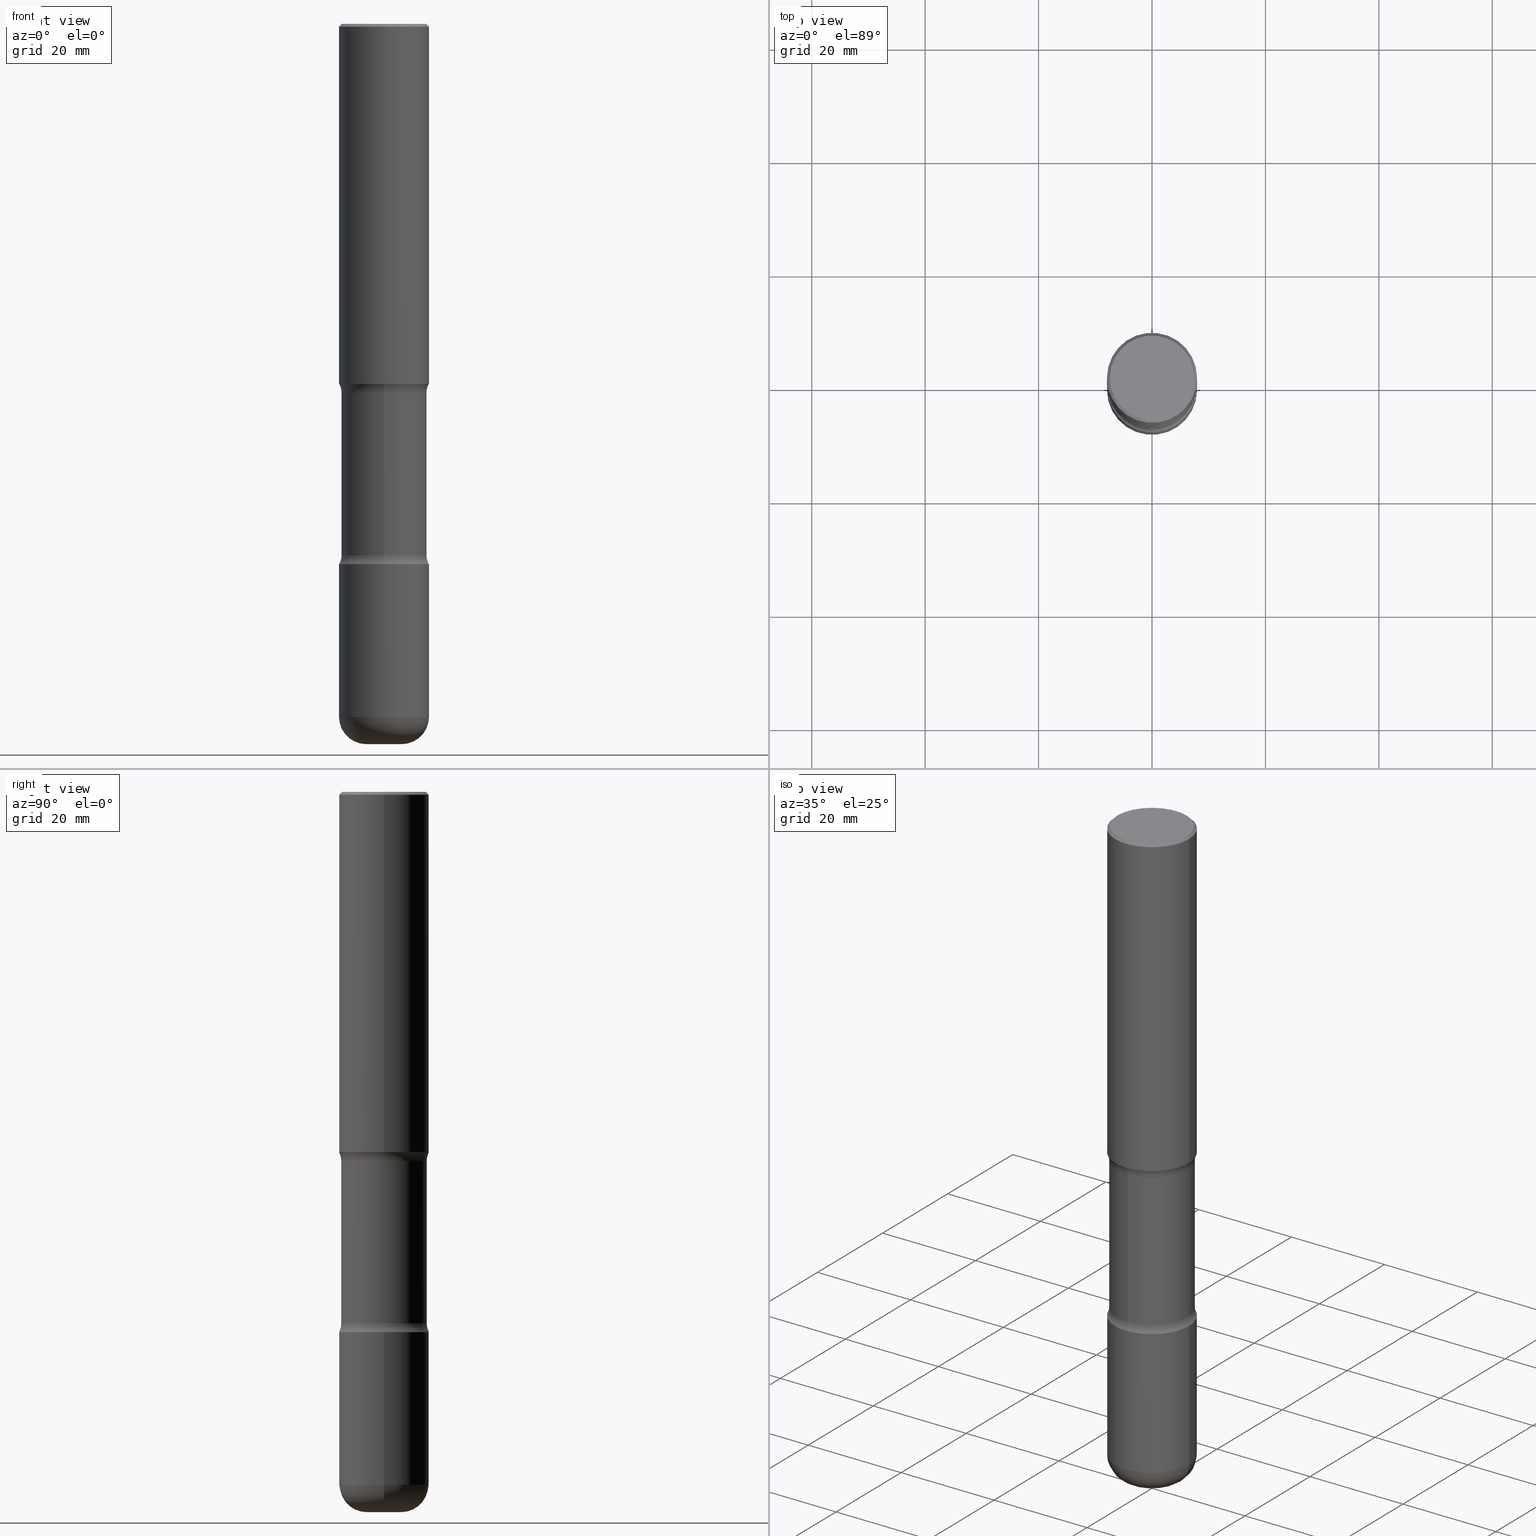
[diagram: canonical four-view strip — front | top / right | iso, engineering-drawing reading convention]
A machine part, canonical four-view strip (front | top / right | iso — engineering-drawing reading convention). The complete STEP part file that produces these views, byte-faithful:
ISO-10303-21;
HEADER;
FILE_DESCRIPTION (( 'STEP AP203' ),
    '1' );
FILE_NAME ('37920.STEP',
    '2024-03-02T01:25:54',
    ( '' ),
    ( '' ),
    'SwSTEP 2.0',
    'SolidWorks 2023',
    '' );
FILE_SCHEMA (( 'CONFIG_CONTROL_DESIGN' ));
ENDSEC;

DATA;
#1 = ORIENTED_EDGE ( 'NONE', *, *, #202, .F. ) ;
#2 = EDGE_CURVE ( 'NONE', #33, #457, #225, .T. ) ;
#3 = AXIS2_PLACEMENT_3D ( 'NONE', #93, #179, #266 ) ;
#4 = LOCAL_TIME ( 20, 25, 54.00000000000000000, #524 ) ;
#5 = DATE_AND_TIME ( #126, #339 ) ;
#6 = DIRECTION ( 'NONE',  ( 1.000000000000000000, -6.982962677686265922E-15, 4.876176775795935793E-29 ) ) ;
#7 = ADVANCED_FACE ( 'NONE', ( #261 ), #96, .T. ) ;
#8 = CARTESIAN_POINT ( 'NONE',  ( 0.3125000000000002220, -1.091087918388482329E-14, -2.499999999999999556 ) ) ;
#9 = DIRECTION ( 'NONE',  ( -1.000000000000000000, 6.982962677686265922E-15, -4.876176775795935793E-29 ) ) ;
#10 = TOROIDAL_SURFACE ( 'NONE', #312, 0.4218750000000000555, 0.1250000000000000000 ) ;
#11 = AXIS2_PLACEMENT_3D ( 'NONE', #13, #149, #18 ) ;
#12 = CARTESIAN_POINT ( 'NONE',  ( 2.073067044938200360E-15, 0.2968749999999871214, -3.689484635215509289 ) ) ;
#13 = CARTESIAN_POINT ( 'NONE',  ( 0.000000000000000000, 0.000000000000000000, 0.000000000000000000 ) ) ;
#14 = CARTESIAN_POINT ( 'NONE',  ( 2.073067044938233492E-15, 0.2968749999999827360, -5.000000000000000888 ) ) ;
#15 = PLANE ( 'NONE',  #252 ) ;
#16 = DIRECTION ( 'NONE',  ( 1.000000000000000000, -6.982962677686264344E-15, 0.000000000000000000 ) ) ;
#17 = DATE_AND_TIME ( #271, #258 ) ;
#18 = DIRECTION ( 'NONE',  ( 1.000000000000000000, 0.000000000000000000, 0.000000000000000000 ) ) ;
#19 = FACE_OUTER_BOUND ( 'NONE', #157, .T. ) ;
#20 = PRODUCT_DEFINITION ( 'UNKNOWN', '', #493, #284 ) ;
#21 = APPLICATION_PROTOCOL_DEFINITION ( 'international standard', 'config_control_design', 1994, #100 ) ;
#22 = CLOSED_SHELL ( 'NONE', ( #181, #250, #224, #337, #357, #355, #32, #7 ) ) ;
#23 = DIRECTION ( 'NONE',  ( -2.445468806185136597E-29, 3.491481338843145583E-15, 1.000000000000000000 ) ) ;
#24 = AXIS2_PLACEMENT_3D ( 'NONE', #368, #53, #183 ) ;
#25 =( GEOMETRIC_REPRESENTATION_CONTEXT ( 3 ) GLOBAL_UNCERTAINTY_ASSIGNED_CONTEXT ( ( #483 ) ) GLOBAL_UNIT_ASSIGNED_CONTEXT ( ( #447, #294, #556 ) ) REPRESENTATION_CONTEXT ( 'NONE', 'WORKASPACE' ) );
#26 = DIRECTION ( 'NONE',  ( 2.521457479434076939E-29, -3.382661233743975076E-15, -1.000000000000000000 ) ) ;
#27 = ORIENTED_EDGE ( 'NONE', *, *, #213, .F. ) ;
#28 = ORIENTED_EDGE ( 'NONE', *, *, #488, .F. ) ;
#29 = DIRECTION ( 'NONE',  ( 1.000000000000000000, -6.982962677686262766E-15, 0.000000000000000000 ) ) ;
#30 = EDGE_LOOP ( 'NONE', ( #40, #415, #282, #253 ) ) ;
#31 = CARTESIAN_POINT ( 'NONE',  ( 4.890937612370289799E-31, -6.982962677686315028E-17, -0.02000000000000006981 ) ) ;
#32 = ADVANCED_FACE ( 'NONE', ( #47 ), #436, .F. ) ;
#33 = VERTEX_POINT ( 'NONE', #477 ) ;
#34 = FACE_OUTER_BOUND ( 'NONE', #387, .T. ) ;
#35 = CARTESIAN_POINT ( 'NONE',  ( 6.171273093058203090E-29, -9.069431456984199816E-15, -2.560515364784490711 ) ) ;
#36 = AXIS2_PLACEMENT_3D ( 'NONE', #272, #315, #94 ) ;
#37 = ORGANIZATION ( 'UNSPECIFIED', 'UNSPECIFIED', '' ) ;
#38 = ORIENTED_EDGE ( 'NONE', *, *, #536, .T. ) ;
#39 = EDGE_CURVE ( 'NONE', #102, #417, #456, .T. ) ;
#40 = ORIENTED_EDGE ( 'NONE', *, *, #313, .F. ) ;
#41 = DIRECTION ( 'NONE',  ( 2.521457479434076939E-29, -3.382661233743975076E-15, -1.000000000000000000 ) ) ;
#42 = CIRCLE ( 'NONE', #443, 0.3125000000000001665 ) ;
#43 = AXIS2_PLACEMENT_3D ( 'NONE', #491, #485, #57 ) ;
#44 = CARTESIAN_POINT ( 'NONE',  ( -2.090307983695953569E-15, -0.2968750000000091038, -2.560515364784489822 ) ) ;
#45 = DIRECTION ( 'NONE',  ( 2.521457479434076939E-29, -3.382661233743975076E-15, -1.000000000000000000 ) ) ;
#46 = EDGE_CURVE ( 'NONE', #215, #33, #297, .T. ) ;
#47 = FACE_OUTER_BOUND ( 'NONE', #169, .T. ) ;
#48 = EDGE_CURVE ( 'NONE', #170, #451, #51, .T. ) ;
#49 = CARTESIAN_POINT ( 'NONE',  ( 6.171273093058203090E-29, -9.069431456984199816E-15, -2.560515364784490711 ) ) ;
#50 = APPROVAL ( #279, 'UNSPECIFIED' ) ;
#51 = CIRCLE ( 'NONE', #554, 0.2924999999999998157 ) ;
#52 = FACE_OUTER_BOUND ( 'NONE', #87, .T. ) ;
#53 = DIRECTION ( 'NONE',  ( 2.521457479434076939E-29, -3.382661233743974681E-15, -1.000000000000000000 ) ) ;
#54 =( LENGTH_UNIT ( ) NAMED_UNIT ( * ) SI_UNIT ( $, .METRE. ) );
#55 = DIRECTION ( 'NONE',  ( 0.7071067811865472397, -7.319954787623254468E-15, -0.7071067811865477948 ) ) ;
#56 = FACE_OUTER_BOUND ( 'NONE', #467, .T. ) ;
#57 = DIRECTION ( 'NONE',  ( -1.000000000000000000, 6.982962677686265922E-15, -4.876176775795935793E-29 ) ) ;
#58 = PLANE ( 'NONE',  #400 ) ;
#59 = EDGE_LOOP ( 'NONE', ( #74, #343, #275, #65 ) ) ;
#60 = CIRCLE ( 'NONE', #475, 0.2968750000000000000 ) ;
#61 = VECTOR ( 'NONE', #289, 39.37007874015748143 ) ;
#62 = DIRECTION ( 'NONE',  ( 1.000000000000000000, -6.982962677686266711E-15, 4.876176775795935232E-29 ) ) ;
#63 = ORIENTED_EDGE ( 'NONE', *, *, #262, .F. ) ;
#64 = EDGE_CURVE ( 'NONE', #102, #238, #106, .T. ) ;
#65 = ORIENTED_EDGE ( 'NONE', *, *, #413, .F. ) ;
#66 = DIRECTION ( 'NONE',  ( 6.982962677686265922E-15, 1.000000000000000000, -3.496765431890253764E-15 ) ) ;
#67 = CARTESIAN_POINT ( 'NONE',  ( -2.036710343088299976E-15, -0.2968750000000173195, -4.999999999999999112 ) ) ;
#68 = ORIENTED_EDGE ( 'NONE', *, *, #91, .F. ) ;
#69 = AXIS2_PLACEMENT_3D ( 'NONE', #198, #329, #377 ) ;
#70 = LOCAL_TIME ( 20, 25, 54.00000000000000000, #380 ) ;
#71 = ADVANCED_FACE ( 'NONE', ( #332 ), #159, .T. ) ;
#72 = ORIENTED_EDGE ( 'NONE', *, *, #501, .F. ) ;
#73 = DIRECTION ( 'NONE',  ( 1.000000000000000000, -6.982962677686266711E-15, 4.876067333457692840E-29 ) ) ;
#74 = ORIENTED_EDGE ( 'NONE', *, *, #91, .T. ) ;
#75 = LINE ( 'NONE', #559, #525 ) ;
#76 = CYLINDRICAL_SURFACE ( 'NONE', #178, 0.2968750000000000000 ) ;
#77 = DIRECTION ( 'NONE',  ( 1.000000000000000000, -6.860497997771530774E-15, 4.842131541558068249E-29 ) ) ;
#78 = ORIENTED_EDGE ( 'NONE', *, *, #46, .T. ) ;
#79 = AXIS2_PLACEMENT_3D ( 'NONE', #540, #23, #29 ) ;
#80 = MANIFOLD_SOLID_BREP ( 'Body-Move/Copy2[1]', #292 ) ;
#81 = EDGE_LOOP ( 'NONE', ( #132, #401, #228, #243 ) ) ;
#82 = CYLINDRICAL_SURFACE ( 'NONE', #428, 0.3125000000000001665 ) ;
#83 = CC_DESIGN_DATE_AND_TIME_ASSIGNMENT ( #5, #486, ( #20 ) ) ;
#84 = CC_DESIGN_PERSON_AND_ORGANIZATION_ASSIGNMENT ( #288, #438, ( #493 ) ) ;
#85 = DIRECTION ( 'NONE',  ( 1.000000000000000000, -6.982962677686265133E-15, 0.000000000000000000 ) ) ;
#86 = DIRECTION ( 'NONE',  ( 2.521457479434076939E-29, -3.382661233743975076E-15, -1.000000000000000000 ) ) ;
#87 = EDGE_LOOP ( 'NONE', ( #195, #133, #520, #28 ) ) ;
#88 = TOROIDAL_SURFACE ( 'NONE', #187, 0.4218750000000001110, 0.1250000000000001388 ) ;
#89 = MANIFOLD_SOLID_BREP ( 'Body-Move/Copy2[2]', #160 ) ;
#90 = CC_DESIGN_APPROVAL ( #50, ( #493 ) ) ;
#91 = EDGE_CURVE ( 'NONE', #238, #102, #144, .T. ) ;
#92 = EDGE_CURVE ( 'NONE', #417, #487, #359, .T. ) ;
#93 = CARTESIAN_POINT ( 'NONE',  ( 6.018686173901665994E-29, -8.864728478481826400E-15, -2.499999999999999556 ) ) ;
#94 = DIRECTION ( 'NONE',  ( 1.000000000000000000, -6.982962677686266711E-15, 0.000000000000000000 ) ) ;
#95 = CARTESIAN_POINT ( 'NONE',  ( 2.182175836777019878E-15, 0.3124999999999913958, -2.500000000000000444 ) ) ;
#96 = CYLINDRICAL_SURFACE ( 'NONE', #152, 0.2968750000000000000 ) ;
#97 = CALENDAR_DATE ( 2024, 1, 3 ) ;
#98 = FACE_OUTER_BOUND ( 'NONE', #399, .T. ) ;
#99 = VERTEX_POINT ( 'NONE', #354 ) ;
#100 = APPLICATION_CONTEXT ( 'configuration controlled 3d designs of mechanical parts and assemblies' ) ;
#101 = PRODUCT_DEFINITION_SHAPE ( 'NONE', 'NONE',  #20 ) ;
#102 = VERTEX_POINT ( 'NONE', #517 ) ;
#103 = CIRCLE ( 'NONE', #326, 0.2924999999999998157 ) ;
#104 = DIRECTION ( 'NONE',  ( -2.445468806185136597E-29, 3.491481338843145583E-15, 1.000000000000000000 ) ) ;
#105 = PRODUCT_RELATED_PRODUCT_CATEGORY ( 'detail', '', ( #479 ) ) ;
#106 = CIRCLE ( 'NONE', #455, 0.3125000000000002220 ) ;
#107 = AXIS2_PLACEMENT_3D ( 'NONE', #191, #389, #85 ) ;
#108 = EDGE_CURVE ( 'NONE', #345, #99, #75, .T. ) ;
#109 = AXIS2_PLACEMENT_3D ( 'NONE', #460, #542, #379 ) ;
#110 = CARTESIAN_POINT ( 'NONE',  ( -1.043851414335219820E-46, 1.490343170380447200E-32, 4.268512490100411279E-18 ) ) ;
#111 = LINE ( 'NONE', #363, #544 ) ;
#112 = DIRECTION ( 'NONE',  ( 2.521457479434076939E-29, -3.382661233743974681E-15, -1.000000000000000000 ) ) ;
#113 = ORIENTED_EDGE ( 'NONE', *, *, #508, .T. ) ;
#114 = LINE ( 'NONE', #125, #61 ) ;
#115 = DIRECTION ( 'NONE',  ( -1.000000000000000000, 6.982962677686265922E-15, -4.876176775795935793E-29 ) ) ;
#116 = ADVANCED_FACE ( 'NONE', ( #52 ), #141, .T. ) ;
#117 = APPROVAL_ROLE ( '' ) ;
#118 = VERTEX_POINT ( 'NONE', #476 ) ;
#119 = VECTOR ( 'NONE', #112, 39.37007874015748143 ) ;
#120 = APPROVAL_PERSON_ORGANIZATION ( #265, #50, #147 ) ;
#121 = ORIENTED_EDGE ( 'NONE', *, *, #174, .F. ) ;
#122 = DIRECTION ( 'NONE',  ( -2.445468806185136597E-29, 3.491481338843145583E-15, 1.000000000000000000 ) ) ;
#123 = PERSON_AND_ORGANIZATION ( #316, #37 ) ;
#124 = EDGE_LOOP ( 'NONE', ( #472, #1, #367, #249 ) ) ;
#125 = CARTESIAN_POINT ( 'NONE',  ( 0.3125000000000000000, -2.182175836776958347E-15, 1.523805242436230075E-29 ) ) ;
#126 = CALENDAR_DATE ( 2024, 1, 3 ) ;
#127 = ORIENTED_EDGE ( 'NONE', *, *, #376, .T. ) ;
#128 = ORIENTED_EDGE ( 'NONE', *, *, #543, .T. ) ;
#129 = CC_DESIGN_PERSON_AND_ORGANIZATION_ASSIGNMENT ( #286, #416, ( #479 ) ) ;
#130 = CIRCLE ( 'NONE', #69, 0.3125000000000001665 ) ;
#131 = AXIS2_PLACEMENT_3D ( 'NONE', #153, #322, #155 ) ;
#132 = ORIENTED_EDGE ( 'NONE', *, *, #108, .F. ) ;
#133 = ORIENTED_EDGE ( 'NONE', *, *, #108, .T. ) ;
#134 = DIRECTION ( 'NONE',  ( 1.000000000000000000, -6.982962677686266711E-15, 0.000000000000000000 ) ) ;
#135 = DIRECTION ( 'NONE',  ( 6.982962677686266711E-15, 1.000000000000000000, -3.680805717779217644E-15 ) ) ;
#136 = DIRECTION ( 'NONE',  ( 2.521457479434076939E-29, -3.382661233743975076E-15, -1.000000000000000000 ) ) ;
#137 = EDGE_CURVE ( 'NONE', #99, #165, #346, .T. ) ;
#138 = ADVANCED_FACE ( 'NONE', ( #98 ), #221, .F. ) ;
#139 = AXIS2_PLACEMENT_3D ( 'NONE', #515, #104, #185 ) ;
#140 = CIRCLE ( 'NONE', #545, 0.1899999999999998634 ) ;
#141 = CYLINDRICAL_SURFACE ( 'NONE', #139, 0.3125000000000000000 ) ;
#142 = ORIENTED_EDGE ( 'NONE', *, *, #313, .T. ) ;
#143 = FACE_OUTER_BOUND ( 'NONE', #385, .T. ) ;
#144 = CIRCLE ( 'NONE', #381, 0.3125000000000002220 ) ;
#145 = CARTESIAN_POINT ( 'NONE',  ( 9.170508023194261117E-29, -1.309305502066179584E-14, -3.749999999999999556 ) ) ;
#146 = DIRECTION ( 'NONE',  ( 1.000000000000000000, -6.982962677686266711E-15, 0.000000000000000000 ) ) ;
#147 = APPROVAL_ROLE ( '' ) ;
#148 = EDGE_CURVE ( 'NONE', #215, #118, #534, .T. ) ;
#149 = DIRECTION ( 'NONE',  ( 0.000000000000000000, 0.000000000000000000, 1.000000000000000000 ) ) ;
#150 = PLANE ( 'NONE',  #43 ) ;
#151 = CARTESIAN_POINT ( 'NONE',  ( 1.232232987248685960E-28, -1.732138156284176685E-14, -5.000000000000000000 ) ) ;
#152 = AXIS2_PLACEMENT_3D ( 'NONE', #212, #440, #519 ) ;
#153 = CARTESIAN_POINT ( 'NONE',  ( 4.890937612370289799E-31, -6.982962677686315028E-17, -0.02000000000000006981 ) ) ;
#154 = EDGE_LOOP ( 'NONE', ( #214, #423 ) ) ;
#155 = DIRECTION ( 'NONE',  ( -1.000000000000000000, 6.982962677686266711E-15, 0.000000000000000000 ) ) ;
#156 = DIRECTION ( 'NONE',  ( 1.000000000000000000, -6.982962677686265922E-15, 4.883557194083112340E-29 ) ) ;
#157 = EDGE_LOOP ( 'NONE', ( #38, #142 ) ) ;
#158 = FACE_OUTER_BOUND ( 'NONE', #333, .T. ) ;
#159 = CYLINDRICAL_SURFACE ( 'NONE', #469, 0.3125000000000001665 ) ;
#160 = CLOSED_SHELL ( 'NONE', ( #116, #435, #473, #219, #138, #223 ) ) ;
#161 = ORIENTED_EDGE ( 'NONE', *, *, #507, .T. ) ;
#162 = AXIS2_PLACEMENT_3D ( 'NONE', #500, #194, #66 ) ;
#163 = DIRECTION ( 'NONE',  ( -2.445468806185136597E-29, 3.491481338843145583E-15, 1.000000000000000000 ) ) ;
#164 = DIRECTION ( 'NONE',  ( 6.982962677686265922E-15, 1.000000000000000000, -3.382661233743975076E-15 ) ) ;
#165 = VERTEX_POINT ( 'NONE', #260 ) ;
#166 = ADVANCED_FACE ( 'NONE', ( #143 ), #318, .T. ) ;
#167 = ORIENTED_EDGE ( 'NONE', *, *, #148, .T. ) ;
#168 = CC_DESIGN_DATE_AND_TIME_ASSIGNMENT ( #248, #424, ( #218 ) ) ;
#169 = EDGE_LOOP ( 'NONE', ( #398, #234, #531, #302 ) ) ;
#170 = VERTEX_POINT ( 'NONE', #463 ) ;
#171 = DIRECTION ( 'NONE',  ( -1.000000000000000000, 6.982962677686266711E-15, 0.000000000000000000 ) ) ;
#172 = AXIS2_PLACEMENT_3D ( 'NONE', #396, #404, #6 ) ;
#173 = AXIS2_PLACEMENT_3D ( 'NONE', #370, #328, #331 ) ;
#174 = EDGE_CURVE ( 'NONE', #451, #170, #103, .T. ) ;
#175 = DIRECTION ( 'NONE',  ( 2.521457479434076939E-29, -3.382661233743975076E-15, -1.000000000000000000 ) ) ;
#176 = CARTESIAN_POINT ( 'NONE',  ( -2.894272592809775342E-15, -0.4218750000000130451, -3.689484635215506625 ) ) ;
#177 = DIRECTION ( 'NONE',  ( 2.521457479434076939E-29, -3.382661233743975076E-15, -1.000000000000000000 ) ) ;
#178 = AXIS2_PLACEMENT_3D ( 'NONE', #151, #136, #353 ) ;
#179 = DIRECTION ( 'NONE',  ( 2.521457479434076939E-29, -3.382661233743975076E-15, -1.000000000000000000 ) ) ;
#180 = EDGE_LOOP ( 'NONE', ( #204, #482, #308, #340 ) ) ;
#181 = ADVANCED_FACE ( 'NONE', ( #300 ), #76, .T. ) ;
#182 = DIRECTION ( 'NONE',  ( 1.000000000000000000, -6.860497997771530774E-15, 4.842131541558068249E-29 ) ) ;
#183 = DIRECTION ( 'NONE',  ( 6.982962677686265922E-15, 1.000000000000000000, -3.382661233743974681E-15 ) ) ;
#184 = PERSON_AND_ORGANIZATION_ROLE ( 'creator' ) ;
#185 = DIRECTION ( 'NONE',  ( 1.000000000000000000, -6.982962677686266711E-15, 4.876176775795936353E-29 ) ) ;
#186 = CARTESIAN_POINT ( 'NONE',  ( 4.890937612370289799E-31, -6.982962677686315028E-17, -0.02000000000000006981 ) ) ;
#187 = AXIS2_PLACEMENT_3D ( 'NONE', #217, #402, #320 ) ;
#188 = VECTOR ( 'NONE', #489, 39.37007874015748143 ) ;
#189 = EDGE_CURVE ( 'NONE', #344, #457, #420, .T. ) ;
#190 = DIRECTION ( 'NONE',  ( 6.982962677686265133E-15, 1.000000000000000000, -3.680805717779217644E-15 ) ) ;
#191 = CARTESIAN_POINT ( 'NONE',  ( 9.170508023194261117E-29, -1.309305502066179584E-14, -3.749999999999999556 ) ) ;
#192 = AXIS2_PLACEMENT_3D ( 'NONE', #145, #247, #448 ) ;
#193 = APPROVAL_PERSON_ORGANIZATION ( #123, #244, #117 ) ;
#194 = DIRECTION ( 'NONE',  ( 2.521457479434076939E-29, -3.382661233743975076E-15, -1.000000000000000000 ) ) ;
#195 = ORIENTED_EDGE ( 'NONE', *, *, #523, .T. ) ;
#196 = DIRECTION ( 'NONE',  ( 1.000000000000000000, -6.982962677686266711E-15, 4.876067333457692840E-29 ) ) ;
#197 = ORIENTED_EDGE ( 'NONE', *, *, #445, .F. ) ;
#198 = CARTESIAN_POINT ( 'NONE',  ( 9.170508023194261117E-29, -1.309305502066179584E-14, -3.749999999999999556 ) ) ;
#199 = CARTESIAN_POINT ( 'NONE',  ( 0.000000000000000000, 0.000000000000000000, 0.000000000000000000 ) ) ;
#200 = VERTEX_POINT ( 'NONE', #95 ) ;
#201 = TOROIDAL_SURFACE ( 'NONE', #518, 0.4218750000000000555, 0.1250000000000000000 ) ;
#202 = EDGE_CURVE ( 'NONE', #550, #215, #303, .T. ) ;
#203 = SHAPE_DEFINITION_REPRESENTATION ( #101, #537 ) ;
#204 = ORIENTED_EDGE ( 'NONE', *, *, #46, .F. ) ;
#205 = PLANE ( 'NONE',  #24 ) ;
#206 = ORIENTED_EDGE ( 'NONE', *, *, #501, .T. ) ;
#207 = CIRCLE ( 'NONE', #227, 0.3124999999999998890 ) ;
#208 = CC_DESIGN_SECURITY_CLASSIFICATION ( #218, ( #493 ) ) ;
#209 = DIRECTION ( 'NONE',  ( -2.445468806185136597E-29, 3.491481338843145583E-15, 1.000000000000000000 ) ) ;
#210 = SECURITY_CLASSIFICATION_LEVEL ( 'unclassified' ) ;
#211 = DIRECTION ( 'NONE',  ( 6.982962677686265922E-15, 1.000000000000000000, -3.382661233743975076E-15 ) ) ;
#212 = CARTESIAN_POINT ( 'NONE',  ( 1.232232987248685960E-28, -1.732138156284176685E-14, -5.000000000000000000 ) ) ;
#213 = EDGE_CURVE ( 'NONE', #215, #550, #267, .T. ) ;
#214 = ORIENTED_EDGE ( 'NONE', *, *, #270, .T. ) ;
#215 = VERTEX_POINT ( 'NONE', #44 ) ;
#216 = AXIS2_PLACEMENT_3D ( 'NONE', #397, #177, #164 ) ;
#217 = CARTESIAN_POINT ( 'NONE',  ( 9.022519586318873617E-29, -1.288176675380345821E-14, -3.689484635215508401 ) ) ;
#218 = SECURITY_CLASSIFICATION ( '', '', #210 ) ;
#219 = ADVANCED_FACE ( 'NONE', ( #269 ), #58, .F. ) ;
#220 = CARTESIAN_POINT ( 'NONE',  ( 2.182175836777050644E-15, 0.3124999999999870104, -3.750000000000000888 ) ) ;
#221 = PLANE ( 'NONE',  #172 ) ;
#222 = CARTESIAN_POINT ( 'NONE',  ( 2.042516583223231356E-15, 0.2924999999999998157, -1.019124035366569212E-15 ) ) ;
#223 = ADVANCED_FACE ( 'NONE', ( #226 ), #356, .T. ) ;
#224 = ADVANCED_FACE ( 'NONE', ( #551 ), #201, .F. ) ;
#225 = CIRCLE ( 'NONE', #532, 0.2968750000000000000 ) ;
#226 = FACE_OUTER_BOUND ( 'NONE', #81, .T. ) ;
#227 = AXIS2_PLACEMENT_3D ( 'NONE', #186, #412, #146 ) ;
#228 = ORIENTED_EDGE ( 'NONE', *, *, #488, .T. ) ;
#229 = CIRCLE ( 'NONE', #421, 0.1250000000000000000 ) ;
#230 = APPLICATION_PROTOCOL_DEFINITION ( 'international standard', 'config_control_design', 1994, #406 ) ;
#231 = DIRECTION ( 'NONE',  ( 2.521457479434076939E-29, -3.382661233743975076E-15, -1.000000000000000000 ) ) ;
#232 = DIRECTION ( 'NONE',  ( -2.445468806185136597E-29, 3.491481338843145583E-15, 1.000000000000000000 ) ) ;
#233 = CARTESIAN_POINT ( 'NONE',  ( 1.176270495775050811E-28, -1.679402523983553013E-14, -4.810000000000000497 ) ) ;
#234 = ORIENTED_EDGE ( 'NONE', *, *, #536, .F. ) ;
#235 = CARTESIAN_POINT ( 'NONE',  ( 2.945937379648955300E-15, 0.4218749999999909517, -2.560515364784492487 ) ) ;
#236 = DIRECTION ( 'NONE',  ( 2.438088387897960049E-29, -3.491481338843145188E-15, -1.000000000000000000 ) ) ;
#237 = DIRECTION ( 'NONE',  ( -2.445468806185136597E-29, 3.491481338843145583E-15, 1.000000000000000000 ) ) ;
#238 = VERTEX_POINT ( 'NONE', #311 ) ;
#239 = CARTESIAN_POINT ( 'NONE',  ( 1.176270495775050811E-28, -1.679402523983553013E-14, -4.810000000000000497 ) ) ;
#240 = DIRECTION ( 'NONE',  ( -2.445468806185136597E-29, 3.491481338843145583E-15, 1.000000000000000000 ) ) ;
#241 = CIRCLE ( 'NONE', #338, 0.1250000000000001388 ) ;
#242 = LOCAL_TIME ( 20, 25, 54.00000000000000000, #478 ) ;
#243 = ORIENTED_EDGE ( 'NONE', *, *, #137, .F. ) ;
#244 = APPROVAL ( #301, 'UNSPECIFIED' ) ;
#245 = CALENDAR_DATE ( 2024, 1, 3 ) ;
#246 = EDGE_CURVE ( 'NONE', #345, #539, #371, .T. ) ;
#247 = DIRECTION ( 'NONE',  ( -2.521457479434076939E-29, 3.382661233743974681E-15, 1.000000000000000000 ) ) ;
#248 = DATE_AND_TIME ( #97, #242 ) ;
#249 = ORIENTED_EDGE ( 'NONE', *, *, #336, .T. ) ;
#250 = ADVANCED_FACE ( 'NONE', ( #310 ), #88, .F. ) ;
#251 = DATE_AND_TIME ( #405, #4 ) ;
#252 = AXIS2_PLACEMENT_3D ( 'NONE', #498, #236, #115 ) ;
#253 = ORIENTED_EDGE ( 'NONE', *, *, #189, .F. ) ;
#254 = CC_DESIGN_APPROVAL ( #386, ( #20 ) ) ;
#255 = ORIENTED_EDGE ( 'NONE', *, *, #413, .T. ) ;
#256 = DIRECTION ( 'NONE',  ( 2.521457479434076939E-29, -3.382661233743975076E-15, -1.000000000000000000 ) ) ;
#257 = AXIS2_PLACEMENT_3D ( 'NONE', #390, #351, #134 ) ;
#258 = LOCAL_TIME ( 20, 25, 54.00000000000000000, #276 ) ;
#259 = FACE_OUTER_BOUND ( 'NONE', #124, .T. ) ;
#260 = CARTESIAN_POINT ( 'NONE',  ( 0.3124999999999998890, -2.213735251080466123E-15, -0.02000000000000006981 ) ) ;
#261 = FACE_OUTER_BOUND ( 'NONE', #180, .T. ) ;
#262 = EDGE_CURVE ( 'NONE', #451, #165, #264, .T. ) ;
#263 = ORIENTED_EDGE ( 'NONE', *, *, #336, .F. ) ;
#264 = LINE ( 'NONE', #484, #280 ) ;
#265 = PERSON_AND_ORGANIZATION ( #316, #37 ) ;
#266 = DIRECTION ( 'NONE',  ( 6.982962677686265922E-15, 1.000000000000000000, -3.496765431890253764E-15 ) ) ;
#267 = CIRCLE ( 'NONE', #492, 0.2968750000000000000 ) ;
#268 = CARTESIAN_POINT ( 'NONE',  ( -0.1225000000000003308, -1.558028551674741034E-14, -5.000000000000000000 ) ) ;
#269 = FACE_OUTER_BOUND ( 'NONE', #522, .T. ) ;
#270 = EDGE_CURVE ( 'NONE', #487, #417, #130, .T. ) ;
#271 = CALENDAR_DATE ( 2024, 1, 3 ) ;
#272 = CARTESIAN_POINT ( 'NONE',  ( 4.890937612370289799E-31, -6.982962677686315028E-17, -0.02000000000000006981 ) ) ;
#273 = FACE_OUTER_BOUND ( 'NONE', #299, .T. ) ;
#274 = MANIFOLD_SOLID_BREP ( 'Body-Move/Copy2[4]', #22 ) ;
#275 = ORIENTED_EDGE ( 'NONE', *, *, #270, .F. ) ;
#276 = COORDINATED_UNIVERSAL_TIME_OFFSET ( 5, 0, .BEHIND. ) ;
#277 = DIRECTION ( 'NONE',  ( -2.445468806185136877E-29, 3.491481338843145188E-15, 1.000000000000000000 ) ) ;
#278 = CARTESIAN_POINT ( 'NONE',  ( 1.222734403092568523E-28, -1.745740669421572989E-14, -5.000000000000000000 ) ) ;
#279 = APPROVAL_STATUS ( 'not_yet_approved' ) ;
#280 = VECTOR ( 'NONE', #55, 39.37007874015748143 ) ;
#281 = AXIS2_PLACEMENT_3D ( 'NONE', #31, #384, #171 ) ;
#282 = ORIENTED_EDGE ( 'NONE', *, *, #2, .T. ) ;
#283 = DIRECTION ( 'NONE',  ( 2.521457479434076939E-29, -3.382661233743975076E-15, -1.000000000000000000 ) ) ;
#284 = DESIGN_CONTEXT ( 'detailed design', #100, 'design' ) ;
#285 = APPROVAL_ROLE ( '' ) ;
#286 = PERSON_AND_ORGANIZATION ( #316, #37 ) ;
#287 = ORIENTED_EDGE ( 'NONE', *, *, #246, .F. ) ;
#288 = PERSON_AND_ORGANIZATION ( #316, #37 ) ;
#289 = DIRECTION ( 'NONE',  ( -2.445468806185136877E-29, 3.491481338843145188E-15, 1.000000000000000000 ) ) ;
#290 = CARTESIAN_POINT ( 'NONE',  ( 9.170508023194261117E-29, -1.309305502066179584E-14, -3.749999999999999556 ) ) ;
#291 = CARTESIAN_POINT ( 'NONE',  ( 1.176270495775050811E-28, -1.679402523983553013E-14, -4.810000000000000497 ) ) ;
#292 = CLOSED_SHELL ( 'NONE', ( #71, #452, #298, #166, #527, #453 ) ) ;
#293 = AXIS2_PLACEMENT_3D ( 'NONE', #335, #163, #156 ) ;
#294 =( NAMED_UNIT ( * ) PLANE_ANGLE_UNIT ( ) SI_UNIT ( $, .RADIAN. ) );
#295 = AXIS2_PLACEMENT_3D ( 'NONE', #514, #41, #409 ) ;
#296 = ORIENTED_EDGE ( 'NONE', *, *, #202, .T. ) ;
#297 = LINE ( 'NONE', #67, #119 ) ;
#298 = ADVANCED_FACE ( 'NONE', ( #158 ), #15, .T. ) ;
#299 = EDGE_LOOP ( 'NONE', ( #128, #206, #68, #429 ) ) ;
#300 = FACE_OUTER_BOUND ( 'NONE', #431, .T. ) ;
#301 = APPROVAL_STATUS ( 'not_yet_approved' ) ;
#302 = ORIENTED_EDGE ( 'NONE', *, *, #430, .T. ) ;
#303 = CIRCLE ( 'NONE', #474, 0.2968750000000000000 ) ;
#304 = ORIENTED_EDGE ( 'NONE', *, *, #464, .F. ) ;
#305 = CIRCLE ( 'NONE', #173, 0.3125000000000002220 ) ;
#306 = DIRECTION ( 'NONE',  ( -6.982962677686266711E-15, -1.000000000000000000, 0.000000000000000000 ) ) ;
#307 = CARTESIAN_POINT ( 'NONE',  ( 6.166278489433880529E-29, -9.076584013649411488E-15, -2.560515364784490711 ) ) ;
#308 = ORIENTED_EDGE ( 'NONE', *, *, #445, .T. ) ;
#309 = ORIENTED_EDGE ( 'NONE', *, *, #350, .F. ) ;
#310 = FACE_OUTER_BOUND ( 'NONE', #30, .T. ) ;
#311 = CARTESIAN_POINT ( 'NONE',  ( 0.3125000000000001665, -1.897620107661249005E-14, -4.810000000000000497 ) ) ;
#312 = AXIS2_PLACEMENT_3D ( 'NONE', #439, #45, #211 ) ;
#313 = EDGE_CURVE ( 'NONE', #459, #344, #42, .T. ) ;
#314 = PERSON_AND_ORGANIZATION_ROLE ( 'classification_officer' ) ;
#315 = DIRECTION ( 'NONE',  ( -2.445468806185136597E-29, 3.491481338843145583E-15, 1.000000000000000000 ) ) ;
#316 = PERSON ( 'UNSPECIFIED', 'UNSPECIFIED', 'UNSPECIFIED', ('UNSPECIFIED'), ('UNSPECIFIED'), ('UNSPECIFIED') ) ;
#317 = PERSON_AND_ORGANIZATION ( #316, #37 ) ;
#318 = TOROIDAL_SURFACE ( 'NONE', #293, 0.1225000000000003031, 0.1899999999999998912 ) ;
#319 = LENGTH_MEASURE_WITH_UNIT ( LENGTH_MEASURE( 0.02539999999999999897 ), #54 );
#320 = DIRECTION ( 'NONE',  ( 6.982962677686265922E-15, 1.000000000000000000, -3.382661233743975076E-15 ) ) ;
#321 = CIRCLE ( 'NONE', #79, 0.1225000000000003308 ) ;
#322 = DIRECTION ( 'NONE',  ( 2.445468806185136597E-29, -3.491481338843145583E-15, -1.000000000000000000 ) ) ;
#323 = DIMENSIONAL_EXPONENTS ( 1.000000000000000000, 0.000000000000000000, 0.000000000000000000, 0.000000000000000000, 0.000000000000000000, 0.000000000000000000, 0.000000000000000000 ) ;
#324 = DIRECTION ( 'NONE',  ( -2.445468806185136597E-29, 3.491481338843145583E-15, 1.000000000000000000 ) ) ;
#325 = CARTESIAN_POINT ( 'NONE',  ( -0.3125000000000001665, 2.220446049250314264E-15, -1.537167215704658792E-29 ) ) ;
#326 = AXIS2_PLACEMENT_3D ( 'NONE', #504, #122, #73 ) ;
#327 = AXIS2_PLACEMENT_3D ( 'NONE', #239, #324, #418 ) ;
#328 = DIRECTION ( 'NONE',  ( -2.445468806185136597E-29, 3.491481338843145583E-15, 1.000000000000000000 ) ) ;
#329 = DIRECTION ( 'NONE',  ( -2.445468806185136597E-29, 3.491481338843145583E-15, 1.000000000000000000 ) ) ;
#330 = PERSON_AND_ORGANIZATION ( #316, #37 ) ;
#331 = DIRECTION ( 'NONE',  ( 1.000000000000000000, -6.982962677686266711E-15, 0.000000000000000000 ) ) ;
#332 = FACE_OUTER_BOUND ( 'NONE', #59, .T. ) ;
#333 = EDGE_LOOP ( 'NONE', ( #471, #441 ) ) ;
#334 = APPROVAL_STATUS ( 'not_yet_approved' ) ;
#335 = CARTESIAN_POINT ( 'NONE',  ( 1.176270495775050811E-28, -1.679402523983553013E-14, -4.810000000000000497 ) ) ;
#336 = EDGE_CURVE ( 'NONE', #200, #118, #408, .T. ) ;
#337 = ADVANCED_FACE ( 'NONE', ( #259 ), #10, .F. ) ;
#338 = AXIS2_PLACEMENT_3D ( 'NONE', #176, #77, #358 ) ;
#339 = LOCAL_TIME ( 20, 25, 54.00000000000000000, #391 ) ;
#340 = ORIENTED_EDGE ( 'NONE', *, *, #2, .F. ) ;
#341 = CARTESIAN_POINT ( 'NONE',  ( -0.3125000000000002220, -2.178820437692046306E-15, -2.499999999999999556 ) ) ;
#342 = DIRECTION ( 'NONE',  ( 1.000000000000000000, -6.982962677686264344E-15, 0.000000000000000000 ) ) ;
#343 = ORIENTED_EDGE ( 'NONE', *, *, #39, .T. ) ;
#344 = VERTEX_POINT ( 'NONE', #220 ) ;
#345 = VERTEX_POINT ( 'NONE', #341 ) ;
#346 = CIRCLE ( 'NONE', #36, 0.3124999999999998890 ) ;
#347 = ORIENTED_EDGE ( 'NONE', *, *, #430, .F. ) ;
#348 = FACE_OUTER_BOUND ( 'NONE', #552, .T. ) ;
#349 = CARTESIAN_POINT ( 'NONE',  ( 0.3125000000000001665, -1.527523085743875418E-14, -3.749999999999999556 ) ) ;
#350 = EDGE_CURVE ( 'NONE', #170, #99, #395, .T. ) ;
#351 = DIRECTION ( 'NONE',  ( -2.445468806185136597E-29, 3.491481338843145583E-15, 1.000000000000000000 ) ) ;
#352 = EDGE_CURVE ( 'NONE', #459, #33, #241, .T. ) ;
#353 = DIRECTION ( 'NONE',  ( 6.982962677686266711E-15, 1.000000000000000000, -3.680805717779217644E-15 ) ) ;
#354 = CARTESIAN_POINT ( 'NONE',  ( -0.3124999999999998890, 2.112346210000094260E-15, -0.02000000000000006981 ) ) ;
#355 = ADVANCED_FACE ( 'NONE', ( #19 ), #403, .F. ) ;
#356 = CYLINDRICAL_SURFACE ( 'NONE', #437, 0.3125000000000000000 ) ;
#357 = ADVANCED_FACE ( 'NONE', ( #56 ), #205, .F. ) ;
#358 = DIRECTION ( 'NONE',  ( 6.860497997771529985E-15, 1.000000000000000000, 0.000000000000000000 ) ) ;
#359 = CIRCLE ( 'NONE', #107, 0.3125000000000001665 ) ;
#360 = CONICAL_SURFACE ( 'NONE', #281, 0.3124999999999998890, 0.7853981633974479459 ) ;
#361 = DIRECTION ( 'NONE',  ( 1.000000000000000000, -6.982962677686262766E-15, 0.000000000000000000 ) ) ;
#362 = CARTESIAN_POINT ( 'NONE',  ( -2.894272592809803347E-15, -0.4218750000000091593, -2.560515364784489378 ) ) ;
#363 = CARTESIAN_POINT ( 'NONE',  ( 0.3125000000000001665, -2.182175836776959530E-15, 1.523805242436230636E-29 ) ) ;
#364 = AXIS2_PLACEMENT_3D ( 'NONE', #362, #182, #449 ) ;
#365 = CIRCLE ( 'NONE', #295, 0.3125000000000001665 ) ;
#366 = CARTESIAN_POINT ( 'NONE',  ( -2.143905624303512894E-15, -0.3125000000000132672, -3.749999999999998668 ) ) ;
#367 = ORIENTED_EDGE ( 'NONE', *, *, #464, .T. ) ;
#368 = CARTESIAN_POINT ( 'NONE',  ( 6.113672015462840371E-29, -8.728703347107863365E-15, -2.499999999999999556 ) ) ;
#369 = MECHANICAL_CONTEXT ( 'NONE', #406, 'mechanical' ) ;
#370 = CARTESIAN_POINT ( 'NONE',  ( 6.113672015462840371E-29, -8.728703347107863365E-15, -2.499999999999999556 ) ) ;
#371 = CIRCLE ( 'NONE', #257, 0.3125000000000002220 ) ;
#372 = APPROVAL_PERSON_ORGANIZATION ( #468, #386, #285 ) ;
#373 = ORIENTED_EDGE ( 'NONE', *, *, #137, .T. ) ;
#374 = CARTESIAN_POINT ( 'NONE',  ( 0.2924999999999998157, -2.110215457714318748E-15, 4.268512490114932791E-18 ) ) ;
#375 = ORIENTED_EDGE ( 'NONE', *, *, #48, .F. ) ;
#376 = EDGE_CURVE ( 'NONE', #118, #200, #392, .T. ) ;
#377 = DIRECTION ( 'NONE',  ( 1.000000000000000000, -6.982962677686265133E-15, 0.000000000000000000 ) ) ;
#378 = EDGE_LOOP ( 'NONE', ( #121, #547, #510, #309 ) ) ;
#379 = DIRECTION ( 'NONE',  ( -1.000000000000000000, 7.105427357601003436E-15, 0.000000000000000000 ) ) ;
#380 = COORDINATED_UNIVERSAL_TIME_OFFSET ( 5, 0, .BEHIND. ) ;
#381 = AXIS2_PLACEMENT_3D ( 'NONE', #233, #414, #16 ) ;
#382 = CONICAL_SURFACE ( 'NONE', #131, 0.3124999999999998890, 0.7853981633974479459 ) ;
#383 = VERTEX_POINT ( 'NONE', #268 ) ;
#384 = DIRECTION ( 'NONE',  ( 2.445468806185136597E-29, -3.491481338843145583E-15, -1.000000000000000000 ) ) ;
#385 = EDGE_LOOP ( 'NONE', ( #72, #161, #113, #541 ) ) ;
#386 = APPROVAL ( #334, 'UNSPECIFIED' ) ;
#387 = EDGE_LOOP ( 'NONE', ( #63, #375, #509, #373 ) ) ;
#388 = DIRECTION ( 'NONE',  ( -1.000000000000000000, 6.982962677686265922E-15, -4.883557194083112340E-29 ) ) ;
#389 = DIRECTION ( 'NONE',  ( -2.445468806185136597E-29, 3.491481338843145583E-15, 1.000000000000000000 ) ) ;
#390 = CARTESIAN_POINT ( 'NONE',  ( 6.113672015462840371E-29, -8.728703347107863365E-15, -2.499999999999999556 ) ) ;
#391 = COORDINATED_UNIVERSAL_TIME_OFFSET ( 5, 0, .BEHIND. ) ;
#392 = CIRCLE ( 'NONE', #162, 0.3125000000000002776 ) ;
#393 = CARTESIAN_POINT ( 'NONE',  ( 0.000000000000000000, 0.000000000000000000, 0.000000000000000000 ) ) ;
#394 = EDGE_CURVE ( 'NONE', #165, #99, #207, .T. ) ;
#395 = LINE ( 'NONE', #505, #503 ) ;
#396 = CARTESIAN_POINT ( 'NONE',  ( 6.113672015462840371E-29, -8.728703347107863365E-15, -2.499999999999999556 ) ) ;
#397 = CARTESIAN_POINT ( 'NONE',  ( 9.022519586318873617E-29, -1.288176675380345821E-14, -3.689484635215508401 ) ) ;
#398 = ORIENTED_EDGE ( 'NONE', *, *, #352, .F. ) ;
#399 = EDGE_LOOP ( 'NONE', ( #422, #287 ) ) ;
#400 = AXIS2_PLACEMENT_3D ( 'NONE', #222, #407, #9 ) ;
#401 = ORIENTED_EDGE ( 'NONE', *, *, #246, .T. ) ;
#402 = DIRECTION ( 'NONE',  ( 2.521457479434076939E-29, -3.382661233743975076E-15, -1.000000000000000000 ) ) ;
#403 = PLANE ( 'NONE',  #192 ) ;
#404 = DIRECTION ( 'NONE',  ( -2.438088387897960049E-29, 3.491481338843145188E-15, 1.000000000000000000 ) ) ;
#405 = CALENDAR_DATE ( 2024, 1, 3 ) ;
#406 = APPLICATION_CONTEXT ( 'configuration controlled 3d designs of mechanical parts and assemblies' ) ;
#407 = DIRECTION ( 'NONE',  ( 2.438088387897960049E-29, -3.491481338843145188E-15, -1.000000000000000000 ) ) ;
#408 = CIRCLE ( 'NONE', #3, 0.3125000000000002776 ) ;
#409 = DIRECTION ( 'NONE',  ( 6.982962677686265133E-15, 1.000000000000000000, -3.496765431890254947E-15 ) ) ;
#410 = CIRCLE ( 'NONE', #444, 0.1225000000000003308 ) ;
#411 = CARTESIAN_POINT ( 'NONE',  ( 0.1225000000000003031, -1.764943816785210001E-14, -4.810000000000000497 ) ) ;
#412 = DIRECTION ( 'NONE',  ( -2.445468806185136597E-29, 3.491481338843145583E-15, 1.000000000000000000 ) ) ;
#413 = EDGE_CURVE ( 'NONE', #238, #487, #111, .T. ) ;
#414 = DIRECTION ( 'NONE',  ( -2.445468806185136597E-29, 3.491481338843145583E-15, 1.000000000000000000 ) ) ;
#415 = ORIENTED_EDGE ( 'NONE', *, *, #352, .T. ) ;
#416 = PERSON_AND_ORGANIZATION_ROLE ( 'design_owner' ) ;
#417 = VERTEX_POINT ( 'NONE', #533 ) ;
#418 = DIRECTION ( 'NONE',  ( 1.000000000000000000, -6.982962677686265922E-15, 4.883557194083112340E-29 ) ) ;
#419 = CARTESIAN_POINT ( 'NONE',  ( 9.017921104037724021E-29, -1.288835204215942242E-14, -3.689484635215508401 ) ) ;
#420 = CIRCLE ( 'NONE', #511, 0.1250000000000001388 ) ;
#421 = AXIS2_PLACEMENT_3D ( 'NONE', #235, #462, #553 ) ;
#422 = ORIENTED_EDGE ( 'NONE', *, *, #523, .F. ) ;
#423 = ORIENTED_EDGE ( 'NONE', *, *, #92, .T. ) ;
#424 = DATE_TIME_ROLE ( 'classification_date' ) ;
#425 = VERTEX_POINT ( 'NONE', #454 ) ;
#426 = CARTESIAN_POINT ( 'NONE',  ( 0.000000000000000000, 0.000000000000000000, 0.000000000000000000 ) ) ;
#427 = VECTOR ( 'NONE', #494, 39.37007874015748143 ) ;
#428 = AXIS2_PLACEMENT_3D ( 'NONE', #393, #432, #548 ) ;
#429 = ORIENTED_EDGE ( 'NONE', *, *, #508, .F. ) ;
#430 = EDGE_CURVE ( 'NONE', #457, #33, #60, .T. ) ;
#431 = EDGE_LOOP ( 'NONE', ( #296, #78, #347, #197 ) ) ;
#432 = DIRECTION ( 'NONE',  ( -2.445468806185136597E-29, 3.491481338843145583E-15, 1.000000000000000000 ) ) ;
#433 = DIRECTION ( 'NONE',  ( 6.982962677686265922E-15, 1.000000000000000000, -3.382661233743975076E-15 ) ) ;
#434 = DIRECTION ( 'NONE',  ( 6.982962677686266711E-15, 1.000000000000000000, -3.680805717779217644E-15 ) ) ;
#435 = ADVANCED_FACE ( 'NONE', ( #526 ), #382, .T. ) ;
#436 = TOROIDAL_SURFACE ( 'NONE', #216, 0.4218750000000001110, 0.1250000000000001388 ) ;
#437 = AXIS2_PLACEMENT_3D ( 'NONE', #426, #209, #549 ) ;
#438 = PERSON_AND_ORGANIZATION_ROLE ( 'design_supplier' ) ;
#439 = CARTESIAN_POINT ( 'NONE',  ( 6.166278489433880529E-29, -9.076584013649411488E-15, -2.560515364784490711 ) ) ;
#440 = DIRECTION ( 'NONE',  ( 2.521457479434076939E-29, -3.382661233743975076E-15, -1.000000000000000000 ) ) ;
#441 = ORIENTED_EDGE ( 'NONE', *, *, #507, .F. ) ;
#442 = DIRECTION ( 'NONE',  ( -2.445468806185136877E-29, 3.491481338843145188E-15, 1.000000000000000000 ) ) ;
#443 = AXIS2_PLACEMENT_3D ( 'NONE', #290, #283, #458 ) ;
#444 = AXIS2_PLACEMENT_3D ( 'NONE', #278, #232, #361 ) ;
#445 = EDGE_CURVE ( 'NONE', #550, #457, #497, .T. ) ;
#446 = CARTESIAN_POINT ( 'NONE',  ( 9.017921104037724021E-29, -1.288835204215942242E-14, -3.689484635215508401 ) ) ;
#447 =( CONVERSION_BASED_UNIT ( 'INCH', #319 ) LENGTH_UNIT ( ) NAMED_UNIT ( #323 ) );
#448 = DIRECTION ( 'NONE',  ( -6.982962677686265922E-15, -1.000000000000000000, 3.382661233743974681E-15 ) ) ;
#449 = DIRECTION ( 'NONE',  ( 6.860497997771529985E-15, 1.000000000000000000, 0.000000000000000000 ) ) ;
#450 = FACE_OUTER_BOUND ( 'NONE', #154, .T. ) ;
#451 = VERTEX_POINT ( 'NONE', #374 ) ;
#452 = ADVANCED_FACE ( 'NONE', ( #273 ), #555, .T. ) ;
#453 = ADVANCED_FACE ( 'NONE', ( #450 ), #150, .F. ) ;
#454 = CARTESIAN_POINT ( 'NONE',  ( 0.1225000000000003308, -1.831281962223229977E-14, -5.000000000000000000 ) ) ;
#455 = AXIS2_PLACEMENT_3D ( 'NONE', #291, #240, #342 ) ;
#456 = LINE ( 'NONE', #325, #427 ) ;
#457 = VERTEX_POINT ( 'NONE', #12 ) ;
#458 = DIRECTION ( 'NONE',  ( 6.982962677686265133E-15, 1.000000000000000000, -3.496765431890254947E-15 ) ) ;
#459 = VERTEX_POINT ( 'NONE', #366 ) ;
#460 = CARTESIAN_POINT ( 'NONE',  ( -0.1225000000000003031, -1.592361038852940387E-14, -4.810000000000000497 ) ) ;
#461 = ORIENTED_EDGE ( 'NONE', *, *, #92, .F. ) ;
#462 = DIRECTION ( 'NONE',  ( -1.000000000000000000, 6.982962677686265922E-15, -4.883557194083112340E-29 ) ) ;
#463 = CARTESIAN_POINT ( 'NONE',  ( -0.2924999999999998157, 2.077431396611663005E-15, 4.268512490086005323E-18 ) ) ;
#464 = EDGE_CURVE ( 'NONE', #550, #200, #229, .T. ) ;
#465 = ORIENTED_EDGE ( 'NONE', *, *, #64, .T. ) ;
#466 = APPROVAL_DATE_TIME ( #546, #244 ) ;
#467 = EDGE_LOOP ( 'NONE', ( #263, #538 ) ) ;
#468 = PERSON_AND_ORGANIZATION ( #316, #37 ) ;
#469 = AXIS2_PLACEMENT_3D ( 'NONE', #199, #506, #62 ) ;
#470 = CC_DESIGN_PERSON_AND_ORGANIZATION_ASSIGNMENT ( #557, #314, ( #218 ) ) ;
#471 = ORIENTED_EDGE ( 'NONE', *, *, #543, .F. ) ;
#472 = ORIENTED_EDGE ( 'NONE', *, *, #148, .F. ) ;
#473 = ADVANCED_FACE ( 'NONE', ( #34 ), #360, .T. ) ;
#474 = AXIS2_PLACEMENT_3D ( 'NONE', #35, #175, #135 ) ;
#475 = AXIS2_PLACEMENT_3D ( 'NONE', #446, #231, #190 ) ;
#476 = CARTESIAN_POINT ( 'NONE',  ( -2.143905624303545238E-15, -0.3125000000000091593, -2.499999999999998668 ) ) ;
#477 = CARTESIAN_POINT ( 'NONE',  ( -2.090307983695922804E-15, -0.2968750000000128786, -3.689484635215507069 ) ) ;
#478 = COORDINATED_UNIVERSAL_TIME_OFFSET ( 5, 0, .BEHIND. ) ;
#479 = PRODUCT ( '37920', '37920', '', ( #369 ) ) ;
#480 = ORIENTED_EDGE ( 'NONE', *, *, #48, .T. ) ;
#481 = CC_DESIGN_PERSON_AND_ORGANIZATION_ASSIGNMENT ( #317, #184, ( #20 ) ) ;
#482 = ORIENTED_EDGE ( 'NONE', *, *, #213, .T. ) ;
#483 = UNCERTAINTY_MEASURE_WITH_UNIT (LENGTH_MEASURE( 1.000000000000000082E-05 ), #447, 'distance_accuracy_value', 'NONE');
#484 = CARTESIAN_POINT ( 'NONE',  ( 0.3124999999999998890, -2.213735251080466123E-15, -0.02000000000000006981 ) ) ;
#485 = DIRECTION ( 'NONE',  ( 2.438088387897960049E-29, -3.491481338843145188E-15, -1.000000000000000000 ) ) ;
#486 = DATE_TIME_ROLE ( 'creation_date' ) ;
#487 = VERTEX_POINT ( 'NONE', #349 ) ;
#488 = EDGE_CURVE ( 'NONE', #539, #165, #114, .T. ) ;
#489 = DIRECTION ( 'NONE',  ( 2.521457479434076939E-29, -3.382661233743974681E-15, -1.000000000000000000 ) ) ;
#490 = DIRECTION ( 'NONE',  ( -6.982962677686266711E-15, -1.000000000000000000, 3.491481338843145583E-15 ) ) ;
#491 = CARTESIAN_POINT ( 'NONE',  ( 9.170508023194261117E-29, -1.309305502066179584E-14, -3.749999999999999556 ) ) ;
#492 = AXIS2_PLACEMENT_3D ( 'NONE', #49, #86, #434 ) ;
#493 = PRODUCT_DEFINITION_FORMATION_WITH_SPECIFIED_SOURCE ( 'ANY', '', #479, .NOT_KNOWN. ) ;
#494 = DIRECTION ( 'NONE',  ( -2.445468806185136877E-29, 3.491481338843145188E-15, 1.000000000000000000 ) ) ;
#495 = CIRCLE ( 'NONE', #109, 0.1899999999999998634 ) ;
#496 = DIRECTION ( 'NONE',  ( 1.000000000000000000, -6.982962677686266711E-15, 0.000000000000000000 ) ) ;
#497 = LINE ( 'NONE', #14, #188 ) ;
#498 = CARTESIAN_POINT ( 'NONE',  ( 1.222734403092568523E-28, -1.745740669421572989E-14, -5.000000000000000000 ) ) ;
#499 = PERSON_AND_ORGANIZATION_ROLE ( 'creator' ) ;
#500 = CARTESIAN_POINT ( 'NONE',  ( 6.018686173901665994E-29, -8.864728478481826400E-15, -2.499999999999999556 ) ) ;
#501 = EDGE_CURVE ( 'NONE', #383, #102, #495, .T. ) ;
#502 = ORIENTED_EDGE ( 'NONE', *, *, #174, .T. ) ;
#503 = VECTOR ( 'NONE', #558, 39.37007874015748143 ) ;
#504 = CARTESIAN_POINT ( 'NONE',  ( -1.043851414335219820E-46, 1.490343170380447200E-32, 4.268512490100411279E-18 ) ) ;
#505 = CARTESIAN_POINT ( 'NONE',  ( -0.3124999999999998890, 2.112346210000094260E-15, -0.02000000000000006981 ) ) ;
#506 = DIRECTION ( 'NONE',  ( -2.445468806185136597E-29, 3.491481338843145583E-15, 1.000000000000000000 ) ) ;
#507 = EDGE_CURVE ( 'NONE', #383, #425, #321, .T. ) ;
#508 = EDGE_CURVE ( 'NONE', #425, #238, #140, .T. ) ;
#509 = ORIENTED_EDGE ( 'NONE', *, *, #350, .T. ) ;
#510 = ORIENTED_EDGE ( 'NONE', *, *, #394, .T. ) ;
#511 = AXIS2_PLACEMENT_3D ( 'NONE', #516, #388, #306 ) ;
#512 = CC_DESIGN_APPROVAL ( #244, ( #218 ) ) ;
#513 = ORIENTED_EDGE ( 'NONE', *, *, #39, .F. ) ;
#514 = CARTESIAN_POINT ( 'NONE',  ( 9.170508023194261117E-29, -1.309305502066179584E-14, -3.749999999999999556 ) ) ;
#515 = CARTESIAN_POINT ( 'NONE',  ( 0.000000000000000000, 0.000000000000000000, 0.000000000000000000 ) ) ;
#516 = CARTESIAN_POINT ( 'NONE',  ( 2.945937379648984488E-15, 0.4218749999999872324, -3.689484635215510178 ) ) ;
#517 = CARTESIAN_POINT ( 'NONE',  ( -0.3125000000000001665, -1.457357919058521389E-14, -4.810000000000000497 ) ) ;
#518 = AXIS2_PLACEMENT_3D ( 'NONE', #307, #256, #433 ) ;
#519 = DIRECTION ( 'NONE',  ( 6.982962677686266711E-15, 1.000000000000000000, -3.680805717779217644E-15 ) ) ;
#520 = ORIENTED_EDGE ( 'NONE', *, *, #394, .F. ) ;
#521 = CARTESIAN_POINT ( 'NONE',  ( 2.073067044938171961E-15, 0.2968749999999909517, -2.560515364784492043 ) ) ;
#522 = EDGE_LOOP ( 'NONE', ( #480, #502 ) ) ;
#523 = EDGE_CURVE ( 'NONE', #539, #345, #305, .T. ) ;
#524 = COORDINATED_UNIVERSAL_TIME_OFFSET ( 5, 0, .BEHIND. ) ;
#525 = VECTOR ( 'NONE', #442, 39.37007874015748143 ) ;
#526 = FACE_OUTER_BOUND ( 'NONE', #378, .T. ) ;
#527 = ADVANCED_FACE ( 'NONE', ( #348 ), #82, .T. ) ;
#528 = APPROVAL_DATE_TIME ( #17, #386 ) ;
#529 = CC_DESIGN_PERSON_AND_ORGANIZATION_ASSIGNMENT ( #330, #499, ( #493 ) ) ;
#530 = EDGE_LOOP ( 'NONE', ( #27, #167, #127, #304 ) ) ;
#531 = ORIENTED_EDGE ( 'NONE', *, *, #189, .T. ) ;
#532 = AXIS2_PLACEMENT_3D ( 'NONE', #419, #26, #560 ) ;
#533 = CARTESIAN_POINT ( 'NONE',  ( -0.3125000000000001665, -1.272309408099834754E-14, -3.749999999999999556 ) ) ;
#534 = CIRCLE ( 'NONE', #364, 0.1250000000000000000 ) ;
#535 = APPROVAL_DATE_TIME ( #251, #50 ) ;
#536 = EDGE_CURVE ( 'NONE', #344, #459, #365, .T. ) ;
#537 = ADVANCED_BREP_SHAPE_REPRESENTATION ( '37920', ( #80, #89, #274, #11 ), #25 ) ;
#538 = ORIENTED_EDGE ( 'NONE', *, *, #376, .F. ) ;
#539 = VERTEX_POINT ( 'NONE', #8 ) ;
#540 = CARTESIAN_POINT ( 'NONE',  ( 1.222734403092568523E-28, -1.745740669421572989E-14, -5.000000000000000000 ) ) ;
#541 = ORIENTED_EDGE ( 'NONE', *, *, #64, .F. ) ;
#542 = DIRECTION ( 'NONE',  ( 7.105427357601001859E-15, 1.000000000000000000, -3.491481338843145583E-15 ) ) ;
#543 = EDGE_CURVE ( 'NONE', #425, #383, #410, .T. ) ;
#544 = VECTOR ( 'NONE', #277, 39.37007874015748143 ) ;
#545 = AXIS2_PLACEMENT_3D ( 'NONE', #411, #490, #496 ) ;
#546 = DATE_AND_TIME ( #245, #70 ) ;
#547 = ORIENTED_EDGE ( 'NONE', *, *, #262, .T. ) ;
#548 = DIRECTION ( 'NONE',  ( 1.000000000000000000, -6.982962677686266711E-15, 4.876176775795935232E-29 ) ) ;
#549 = DIRECTION ( 'NONE',  ( 1.000000000000000000, -6.982962677686266711E-15, 4.876176775795936353E-29 ) ) ;
#550 = VERTEX_POINT ( 'NONE', #521 ) ;
#551 = FACE_OUTER_BOUND ( 'NONE', #530, .T. ) ;
#552 = EDGE_LOOP ( 'NONE', ( #513, #465, #255, #461 ) ) ;
#553 = DIRECTION ( 'NONE',  ( -6.982962677686266711E-15, -1.000000000000000000, 0.000000000000000000 ) ) ;
#554 = AXIS2_PLACEMENT_3D ( 'NONE', #110, #237, #196 ) ;
#555 = TOROIDAL_SURFACE ( 'NONE', #327, 0.1225000000000003031, 0.1899999999999998912 ) ;
#556 =( NAMED_UNIT ( * ) SI_UNIT ( $, .STERADIAN. ) SOLID_ANGLE_UNIT ( ) );
#557 = PERSON_AND_ORGANIZATION ( #316, #37 ) ;
#558 = DIRECTION ( 'NONE',  ( -0.7071067811865472397, 2.468850131082253905E-15, -0.7071067811865477948 ) ) ;
#559 = CARTESIAN_POINT ( 'NONE',  ( -0.3125000000000000000, 2.220446049250313081E-15, -1.537167215704658232E-29 ) ) ;
#560 = DIRECTION ( 'NONE',  ( 6.982962677686265133E-15, 1.000000000000000000, -3.680805717779217644E-15 ) ) ;
ENDSEC;
END-ISO-10303-21;
